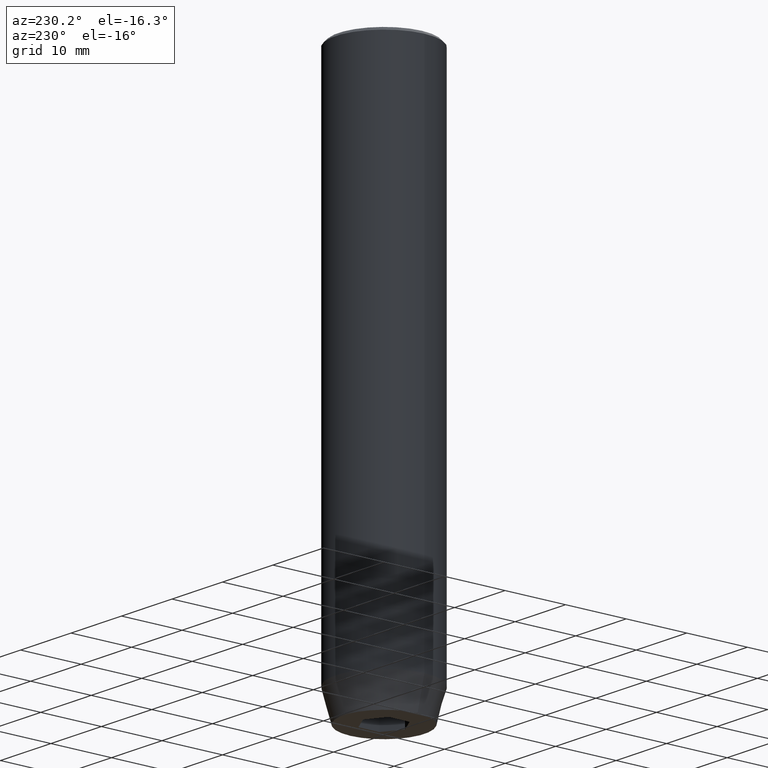
[diagram: clean part render]
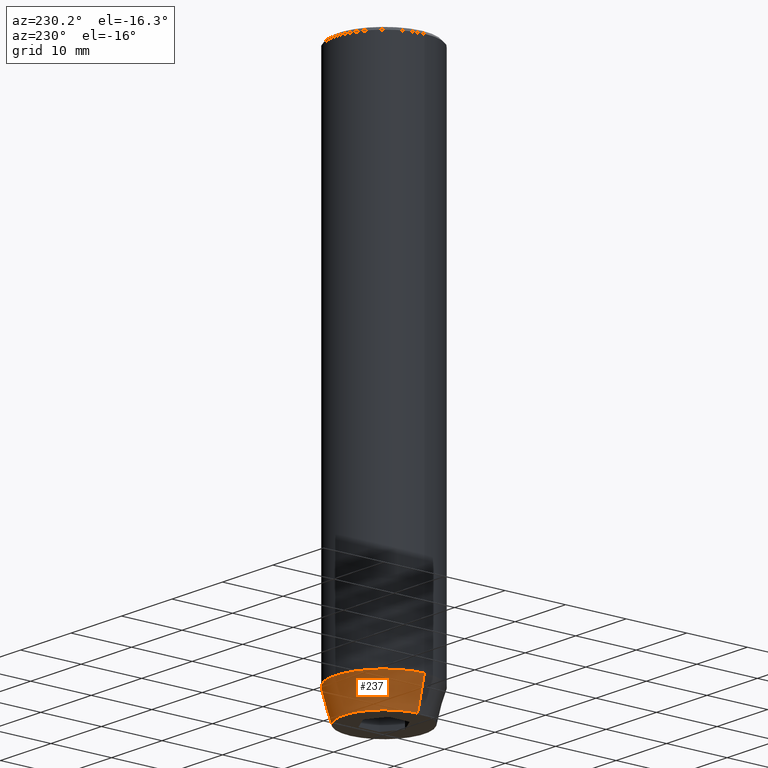
[diagram: same view with one face highlighted and labeled with its STEP entity id]
A machine part, auxiliary view. The second image highlights one B-rep face of the part: STEP entity #237.
In plain terms, the highlighted conical surface has half-angle 15 deg.
Its self-contained STEP definition (entity closure, byte-faithful):
#11 = CIRCLE ( 'NONE', #87, 6.660254037844381969 ) ;
#73 = VERTEX_POINT ( 'NONE', #131 ) ;
#82 = CARTESIAN_POINT ( 'NONE',  ( -6.660254037844381969, 8.976816591066591237E-16, -90.00000000000000000 ) ) ;
#87 = AXIS2_PLACEMENT_3D ( 'NONE', #497, #318, #260 ) ;
#92 = VERTEX_POINT ( 'NONE', #188 ) ;
#112 = CONICAL_SURFACE ( 'NONE', #357, 8.000000000000000000, 0.2617993877991500740 ) ;
#131 = CARTESIAN_POINT ( 'NONE',  ( 6.660254037844381969, 0.000000000000000000, -90.00000000000000000 ) ) ;
#138 = AXIS2_PLACEMENT_3D ( 'NONE', #522, #578, #168 ) ;
#162 = CARTESIAN_POINT ( 'NONE',  ( -8.000000000000000000, 9.797174393178825657E-16, -84.99999999999998579 ) ) ;
#168 = DIRECTION ( 'NONE',  ( 1.000000000000000000, 0.000000000000000000, 0.000000000000000000 ) ) ;
#169 = FACE_OUTER_BOUND ( 'NONE', #555, .T. ) ;
#188 = CARTESIAN_POINT ( 'NONE',  ( 8.000000000000000000, 0.000000000000000000, -84.99999999999998579 ) ) ;
#202 = VERTEX_POINT ( 'NONE', #162 ) ;
#210 = CIRCLE ( 'NONE', #138, 8.000000000000000000 ) ;
#236 = ORIENTED_EDGE ( 'NONE', *, *, #563, .F. ) ;
#237 = ADVANCED_FACE ( 'NONE', ( #169 ), #112, .T. ) ;
#260 = DIRECTION ( 'NONE',  ( 1.000000000000000000, 0.000000000000000000, 0.000000000000000000 ) ) ;
#318 = DIRECTION ( 'NONE',  ( -0.000000000000000000, -0.000000000000000000, 1.000000000000000000 ) ) ;
#319 = VECTOR ( 'NONE', #440, 1000.000000000000000 ) ;
#342 = DIRECTION ( 'NONE',  ( -0.000000000000000000, -0.000000000000000000, 1.000000000000000000 ) ) ;
#354 = VERTEX_POINT ( 'NONE', #82 ) ;
#357 = AXIS2_PLACEMENT_3D ( 'NONE', #533, #342, #429 ) ;
#364 = LINE ( 'NONE', #412, #500 ) ;
#366 = EDGE_CURVE ( 'NONE', #73, #354, #11, .T. ) ;
#399 = ORIENTED_EDGE ( 'NONE', *, *, #466, .F. ) ;
#400 = LINE ( 'NONE', #482, #319 ) ;
#412 = CARTESIAN_POINT ( 'NONE',  ( 8.000000000000000000, 0.000000000000000000, -84.99999999999998579 ) ) ;
#425 = EDGE_CURVE ( 'NONE', #354, #202, #400, .T. ) ;
#429 = DIRECTION ( 'NONE',  ( 1.000000000000000000, 0.000000000000000000, 0.000000000000000000 ) ) ;
#440 = DIRECTION ( 'NONE',  ( -0.2588190451025213501, 3.169619151431772337E-17, 0.9659258262890680902 ) ) ;
#466 = EDGE_CURVE ( 'NONE', #92, #202, #210, .T. ) ;
#468 = ORIENTED_EDGE ( 'NONE', *, *, #425, .T. ) ;
#475 = ORIENTED_EDGE ( 'NONE', *, *, #366, .T. ) ;
#482 = CARTESIAN_POINT ( 'NONE',  ( -8.000000000000000000, 9.797174393178825657E-16, -84.99999999999998579 ) ) ;
#497 = CARTESIAN_POINT ( 'NONE',  ( 0.000000000000000000, 0.000000000000000000, -90.00000000000000000 ) ) ;
#500 = VECTOR ( 'NONE', #585, 1000.000000000000000 ) ;
#522 = CARTESIAN_POINT ( 'NONE',  ( 0.000000000000000000, 0.000000000000000000, -84.99999999999998579 ) ) ;
#533 = CARTESIAN_POINT ( 'NONE',  ( 0.000000000000000000, 0.000000000000000000, -84.99999999999998579 ) ) ;
#555 = EDGE_LOOP ( 'NONE', ( #475, #468, #399, #236 ) ) ;
#563 = EDGE_CURVE ( 'NONE', #73, #92, #364, .T. ) ;
#578 = DIRECTION ( 'NONE',  ( -0.000000000000000000, -0.000000000000000000, 1.000000000000000000 ) ) ;
#585 = DIRECTION ( 'NONE',  ( 0.2588190451025213501, 0.000000000000000000, 0.9659258262890680902 ) ) ;